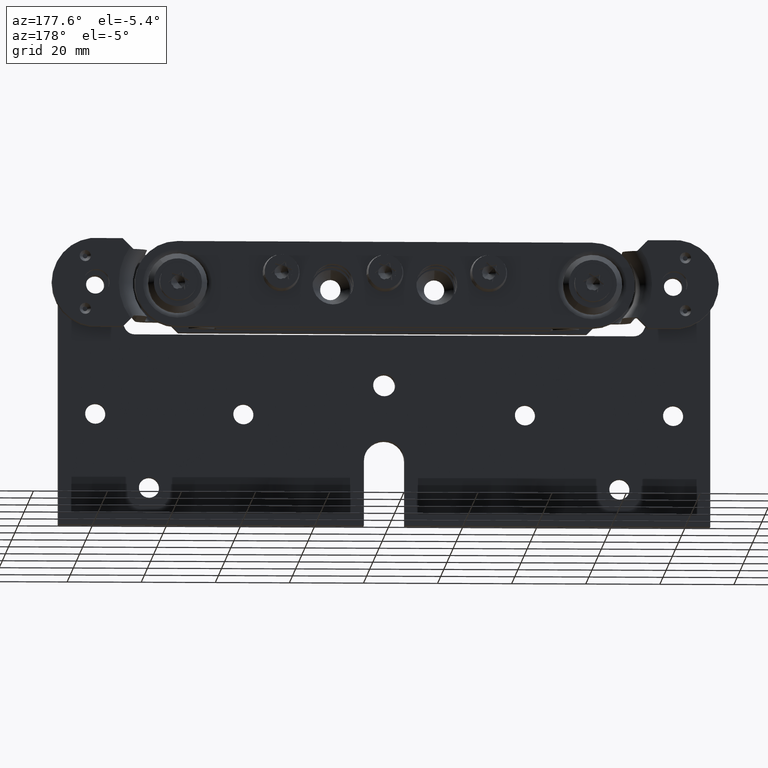
[diagram: clean part render]
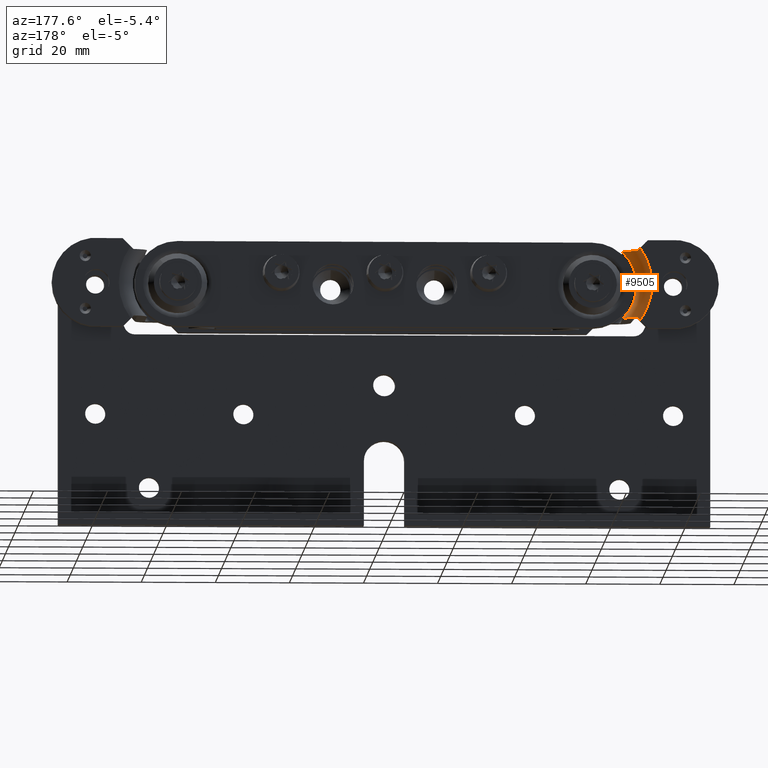
[diagram: same view with one face highlighted and labeled with its STEP entity id]
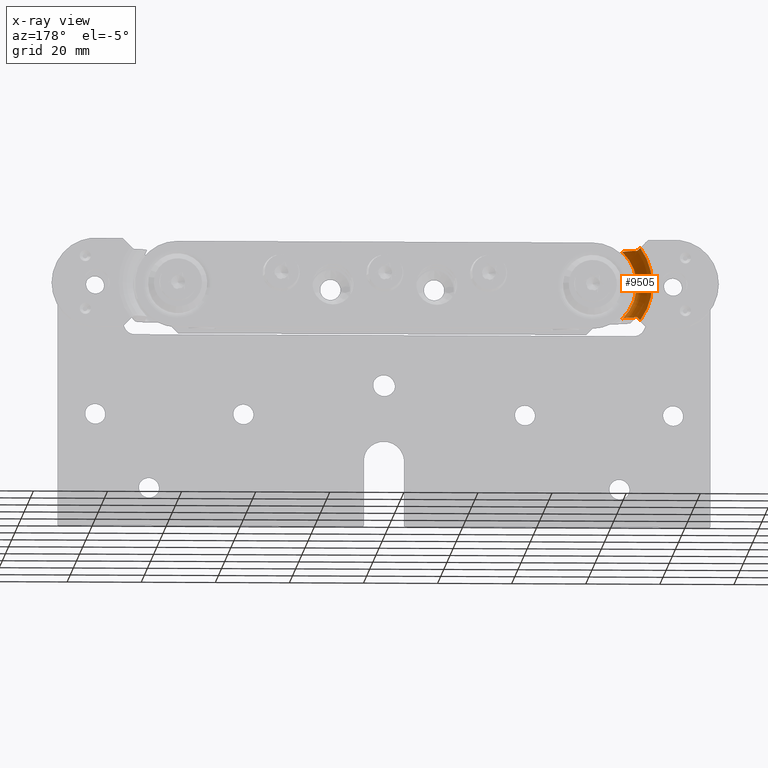
[diagram: x-ray of the same camera — body ghosted, the highlighted face saturated]
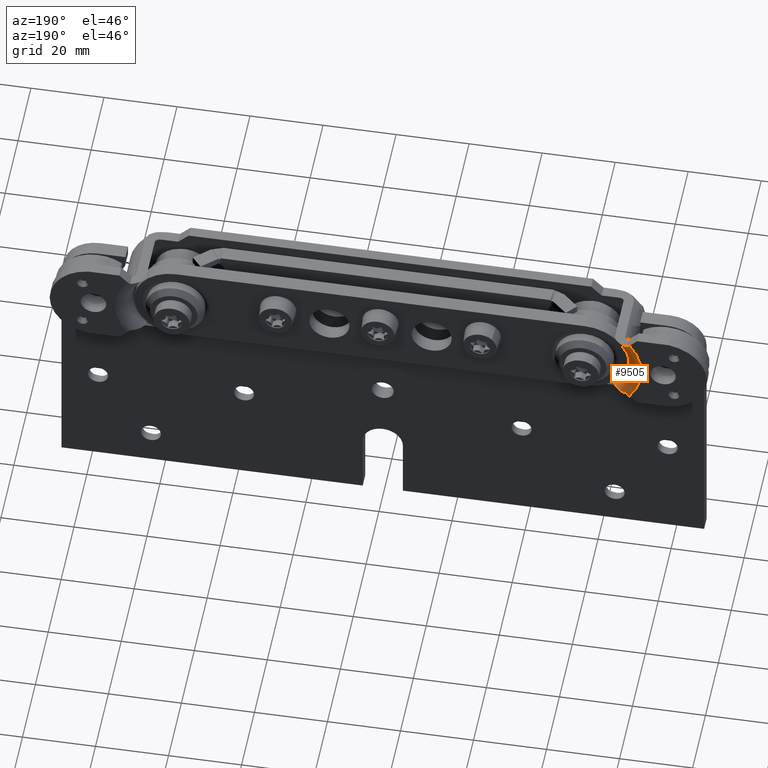
[diagram: same view with one face highlighted and labeled with its STEP entity id]
A machine part, auxiliary view. The second image highlights one B-rep face of the part: STEP entity #9505.
The next image is the same camera in x-ray: the body ghosted, the highlighted face saturated — about 0% of this face is hidden behind the body in this view.
A second angle (auxiliary view) of the same face is appended — the face is thin or edge-on in the first view.
In plain terms, the highlighted toroidal blend (fillet) surface has major radius 16.5 mm and minor (blend) radius 4 mm.
Its self-contained STEP definition (entity closure, byte-faithful):
#278 = CARTESIAN_POINT ( 'NONE',  ( -65.80245331666499453, 19.86577989397900978, -9.000000000000003553 ) ) ;
#301 = ORIENTED_EDGE ( 'NONE', *, *, #10815, .F. ) ;
#341 = CARTESIAN_POINT ( 'NONE',  ( -66.85106329332997177, 20.46147829233893845, -9.000000000000001776 ) ) ;
#586 = B_SPLINE_CURVE_WITH_KNOTS ( 'NONE', 3,
 ( #4880, #2939, #6646, #2031 ),
 .UNSPECIFIED., .F., .F.,
 ( 4, 4 ),
 ( 0.003561287374589938281, 0.004675162083449521666 ),
 .UNSPECIFIED. ) ;
#980 = EDGE_CURVE ( 'NONE', #6039, #8805, #8423, .T. ) ;
#1022 = CARTESIAN_POINT ( 'NONE',  ( -64.17467578644873072, 17.00000280040921297, -8.999999999999998224 ) ) ;
#1126 = CARTESIAN_POINT ( 'NONE',  ( -67.52868498292852451, 20.72238423419400988, 9.000000000000003553 ) ) ;
#1249 = CARTESIAN_POINT ( 'NONE',  ( -64.64885923323198824, 18.61489251042007709, 9.000000000000003553 ) ) ;
#1260 = CARTESIAN_POINT ( 'NONE',  ( -67.99999999999997158, 20.84661142107295007, -9.000000000000001776 ) ) ;
#1406 = DIRECTION ( 'NONE',  ( 0.000000000000000000, 1.000000000000000000, 0.000000000000000000 ) ) ;
#1544 = CARTESIAN_POINT ( 'NONE',  ( -68.25787577455251665, 20.94927234370961955, 9.257875774552543291 ) ) ;
#1756 = EDGE_CURVE ( 'NONE', #7241, #4213, #586, .T. ) ;
#2027 = B_SPLINE_CURVE_WITH_KNOTS ( 'NONE', 3,
 ( #8017, #1544, #6272, #5426 ),
 .UNSPECIFIED., .F., .F.,
 ( 4, 4 ),
 ( 2.896864330006655295E-07, 0.001120831905103476193 ),
 .UNSPECIFIED. ) ;
#2031 = CARTESIAN_POINT ( 'NONE',  ( -67.99999999999997158, 20.84661142107295007, -9.000000000000001776 ) ) ;
#2215 = CARTESIAN_POINT ( 'NONE',  ( -55.49999999999999289, 21.00000000000000000, 0.000000000000000000 ) ) ;
#2229 = CARTESIAN_POINT ( 'NONE',  ( -67.76406328922737998, 20.79200273951769518, 9.000000000000003553 ) ) ;
#2279 = EDGE_CURVE ( 'NONE', #7598, #3621, #2027, .T. ) ;
#2939 = CARTESIAN_POINT ( 'NONE',  ( -68.52244552739222172, 21.00000000000000000, -9.522445527392243037 ) ) ;
#3025 = DIRECTION ( 'NONE',  ( 0.000000000000000000, 0.000000000000000000, 1.000000000000000000 ) ) ;
#3202 = CARTESIAN_POINT ( 'NONE',  ( -65.80956915613575120, 19.84884818703830689, 9.000000000000001776 ) ) ;
#3321 = EDGE_CURVE ( 'NONE', #8805, #7598, #6126, .T. ) ;
#3612 = ORIENTED_EDGE ( 'NONE', *, *, #980, .F. ) ;
#3621 = VERTEX_POINT ( 'NONE', #7534 ) ;
#3809 = CARTESIAN_POINT ( 'NONE',  ( -67.07668570014867271, 20.55875690415725643, -8.999999999999998224 ) ) ;
#3869 = CARTESIAN_POINT ( 'NONE',  ( -67.53284671570985154, 20.72370841365938787, -9.000000000000001776 ) ) ;
#3990 = CARTESIAN_POINT ( 'NONE',  ( -64.42185174443321216, 18.18497390192303698, -9.000000000000003553 ) ) ;
#4045 = CARTESIAN_POINT ( 'NONE',  ( -64.42320522824219609, 18.18738110967687405, 9.000000000000001776 ) ) ;
#4128 = CARTESIAN_POINT ( 'NONE',  ( -67.99999999999997158, 20.84661142107295007, -9.000000000000001776 ) ) ;
#4213 = VERTEX_POINT ( 'NONE', #4128 ) ;
#4399 = CARTESIAN_POINT ( 'NONE',  ( -68.78527199505931833, 21.00000000000000000, -9.785271995059334316 ) ) ;
#4753 = AXIS2_PLACEMENT_3D ( 'NONE', #7645, #1406, #9536 ) ;
#4843 = DIRECTION ( 'NONE',  ( 0.000000000000000000, 1.000000000000000000, 0.000000000000000000 ) ) ;
#4880 = CARTESIAN_POINT ( 'NONE',  ( -68.78527199505931833, 21.00000000000000000, -9.785271995059334316 ) ) ;
#5398 = ORIENTED_EDGE ( 'NONE', *, *, #11656, .F. ) ;
#5426 = CARTESIAN_POINT ( 'NONE',  ( -68.78527199505931833, 21.00000000000011724, 9.785271995059339645 ) ) ;
#5643 = CARTESIAN_POINT ( 'NONE',  ( -66.20249008964026416, 20.13302662261079234, -9.000000000000005329 ) ) ;
#5688 = EDGE_LOOP ( 'NONE', ( #7831, #7877, #3612, #301, #6674, #5398 ) ) ;
#5867 = CARTESIAN_POINT ( 'NONE',  ( -67.99999999999997158, 20.84661142107295007, 9.000000000000001776 ) ) ;
#5880 = CARTESIAN_POINT ( 'NONE',  ( -67.76460192452876186, 20.79212740923761160, -9.000000000000001776 ) ) ;
#6038 = DIRECTION ( 'NONE',  ( 0.000000000000000000, 0.000000000000000000, 1.000000000000000000 ) ) ;
#6039 = VERTEX_POINT ( 'NONE', #9369 ) ;
#6126 = B_SPLINE_CURVE_WITH_KNOTS ( 'NONE', 3,
 ( #11510, #6891, #8771, #7669, #4045, #1249, #10541, #7551, #11269, #9439, #3202, #8709, #6657, #8586, #10350, #1126, #2229, #5867 ),
 .UNSPECIFIED., .F., .F.,
 ( 4, 2, 2, 2, 2, 2, 2, 2, 4 ),
 ( 0.02703015999736453970, 0.02775447090611812481, 0.02847878181487170993, 0.02920309272362529504, 0.02992740363237887669, 0.03065171454113246180, 0.03137602544988604691, 0.03210033635863963203, 0.03282464726739321714 ),
 .UNSPECIFIED. ) ;
#6272 = CARTESIAN_POINT ( 'NONE',  ( -68.51966337674488727, 21.00000000000003553, 9.519663376744912142 ) ) ;
#6646 = CARTESIAN_POINT ( 'NONE',  ( -68.25632735162233189, 20.94865591307812736, -9.256327351622358535 ) ) ;
#6657 = CARTESIAN_POINT ( 'NONE',  ( -66.42112392679979394, 20.24381480524471044, 9.000000000000001776 ) ) ;
#6674 = ORIENTED_EDGE ( 'NONE', *, *, #1756, .F. ) ;
#6720 = CARTESIAN_POINT ( 'NONE',  ( -64.78657247789325879, 18.82080049966417334, -9.000000000000000000 ) ) ;
#6778 = CARTESIAN_POINT ( 'NONE',  ( -65.26095846486273899, 19.37750221460411737, -9.000000000000000000 ) ) ;
#6841 = CARTESIAN_POINT ( 'NONE',  ( -64.20632508626111701, 17.48278231892906831, -9.000000000000003553 ) ) ;
#6891 = CARTESIAN_POINT ( 'NONE',  ( -64.17467603399661868, 17.24538241378149195, 9.000000000000001776 ) ) ;
#7060 = DIRECTION ( 'NONE',  ( -0.000000000000000000, -1.000000000000000000, -0.000000000000000000 ) ) ;
#7241 = VERTEX_POINT ( 'NONE', #4399 ) ;
#7344 = CARTESIAN_POINT ( 'NONE',  ( -64.17467578644873072, 17.00000280040921297, 8.999999999999998224 ) ) ;
#7507 = CARTESIAN_POINT ( 'NONE',  ( -55.49999999999999289, 17.00000000000000000, 0.000000000000000000 ) ) ;
#7534 = CARTESIAN_POINT ( 'NONE',  ( -68.78527199505931833, 21.00000000000011724, 9.785271995059339645 ) ) ;
#7551 = CARTESIAN_POINT ( 'NONE',  ( -65.09039944120770826, 19.19916558341812518, 9.000000000000003553 ) ) ;
#7598 = VERTEX_POINT ( 'NONE', #10517 ) ;
#7645 = CARTESIAN_POINT ( 'NONE',  ( -55.49999999999999289, 17.00000000000000000, 0.000000000000000000 ) ) ;
#7669 = CARTESIAN_POINT ( 'NONE',  ( -64.33282643580872673, 17.96309715048817779, 9.000000000000000000 ) ) ;
#7800 = AXIS2_PLACEMENT_3D ( 'NONE', #7507, #4843, #3025 ) ;
#7831 = ORIENTED_EDGE ( 'NONE', *, *, #2279, .F. ) ;
#7877 = ORIENTED_EDGE ( 'NONE', *, *, #3321, .F. ) ;
#8017 = CARTESIAN_POINT ( 'NONE',  ( -67.99999999999997158, 20.84661142107295007, 9.000000000000001776 ) ) ;
#8423 = CIRCLE ( 'NONE', #4753, 12.50000000000000000 ) ;
#8477 = CARTESIAN_POINT ( 'NONE',  ( -64.33096232618949273, 17.95787206477898934, -9.000000000000003553 ) ) ;
#8586 = CARTESIAN_POINT ( 'NONE',  ( -66.85124495489034757, 20.46150265739735374, 9.000000000000003553 ) ) ;
#8595 = CARTESIAN_POINT ( 'NONE',  ( -64.65118848250646977, 18.61914767885723165, -9.000000000000001776 ) ) ;
#8709 = CARTESIAN_POINT ( 'NONE',  ( -66.21252876327575621, 20.12181305256311958, 9.000000000000003553 ) ) ;
#8771 = CARTESIAN_POINT ( 'NONE',  ( -64.20736773789226959, 17.48859393515320804, 9.000000000000003553 ) ) ;
#8805 = VERTEX_POINT ( 'NONE', #7344 ) ;
#9038 = CIRCLE ( 'NONE', #10601, 16.50000000000000000 ) ;
#9183 = B_SPLINE_CURVE_WITH_KNOTS ( 'NONE', 3,
 ( #1260, #5880, #3869, #3809, #341, #5643, #278, #6778, #10484, #6720, #8595, #3990, #8477, #6841, #10360, #1022 ),
 .UNSPECIFIED., .F., .F.,
 ( 4, 2, 2, 2, 2, 2, 2, 4 ),
 ( 0.02266943965658084481, 0.02339448191285991088, 0.02411952416913897695, 0.02556960868169715073, 0.02629465093797625150, 0.02701969319425535226, 0.02774473545053445303, 0.02846977770681355380 ),
 .UNSPECIFIED. ) ;
#9369 = CARTESIAN_POINT ( 'NONE',  ( -64.17467578644873072, 17.00000280040921297, -8.999999999999998224 ) ) ;
#9439 = CARTESIAN_POINT ( 'NONE',  ( -65.61626421820113819, 19.69829603459553624, 9.000000000000003553 ) ) ;
#9505 = ADVANCED_FACE ( 'NONE', ( #11337 ), #10315, .T. ) ;
#9536 = DIRECTION ( 'NONE',  ( 0.000000000000000000, 0.000000000000000000, 1.000000000000000000 ) ) ;
#10315 = TOROIDAL_SURFACE ( 'NONE', #7800, 16.50000000000000000, 4.000000000000000000 ) ;
#10350 = CARTESIAN_POINT ( 'NONE',  ( -67.07278394842360569, 20.55716203771883599, 9.000000000000001776 ) ) ;
#10360 = CARTESIAN_POINT ( 'NONE',  ( -64.17467603083093763, 17.24224444283976609, -9.000000000000001776 ) ) ;
#10484 = CARTESIAN_POINT ( 'NONE',  ( -65.09058405374237566, 19.19933818434314787, -9.000000000000000000 ) ) ;
#10517 = CARTESIAN_POINT ( 'NONE',  ( -67.99999999999997158, 20.84661142107295007, 9.000000000000001776 ) ) ;
#10541 = CARTESIAN_POINT ( 'NONE',  ( -64.78597985577154361, 18.82000518642655607, 9.000000000000001776 ) ) ;
#10601 = AXIS2_PLACEMENT_3D ( 'NONE', #2215, #7060, #6038 ) ;
#10815 = EDGE_CURVE ( 'NONE', #4213, #6039, #9183, .T. ) ;
#11269 = CARTESIAN_POINT ( 'NONE',  ( -65.25739947787843676, 19.37387548387005864, 9.000000000000001776 ) ) ;
#11337 = FACE_OUTER_BOUND ( 'NONE', #5688, .T. ) ;
#11510 = CARTESIAN_POINT ( 'NONE',  ( -64.17467578644873072, 17.00000280040921297, 8.999999999999998224 ) ) ;
#11656 = EDGE_CURVE ( 'NONE', #3621, #7241, #9038, .T. ) ;